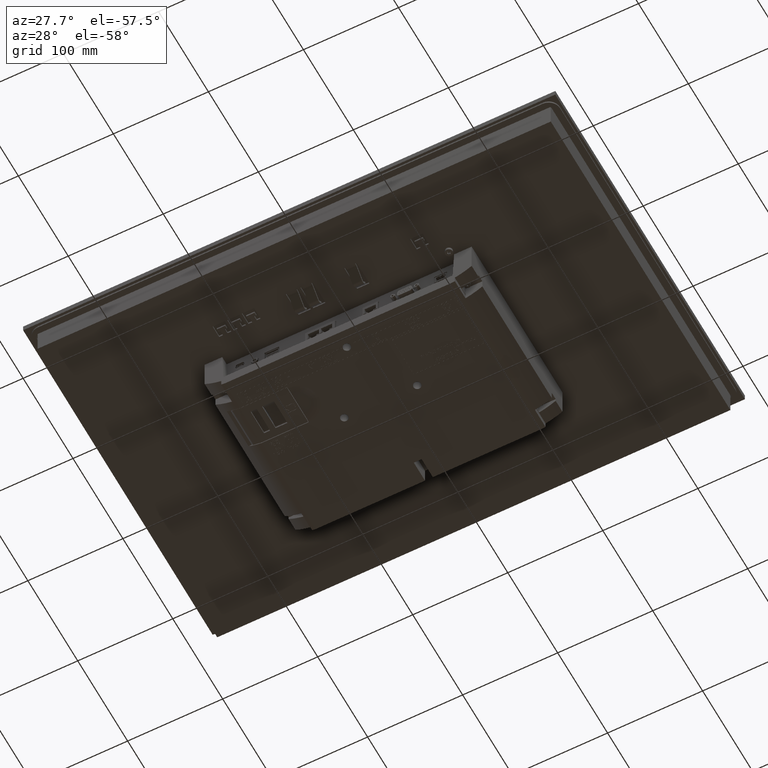
[diagram: clean part render]
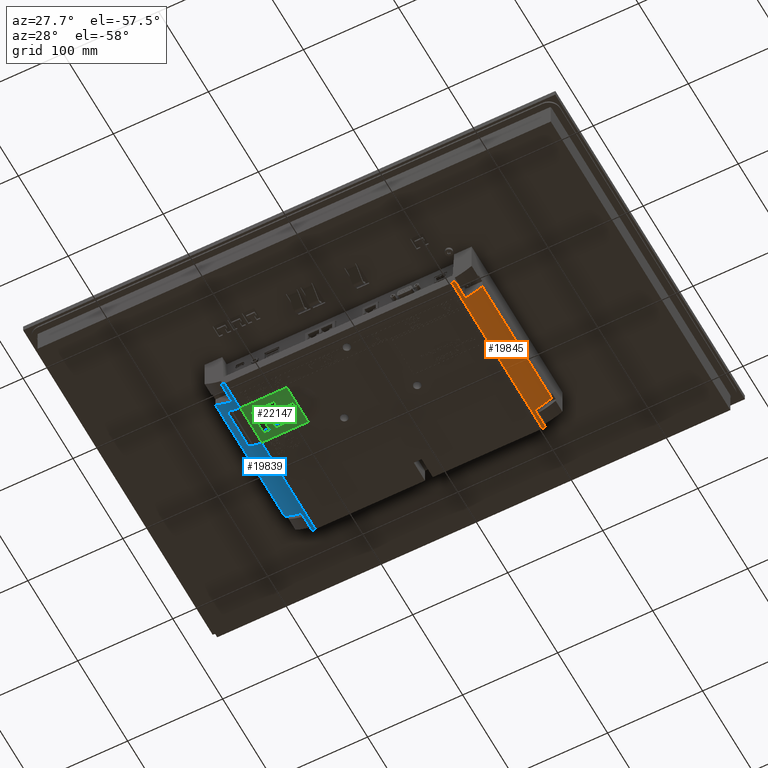
[diagram: same view with three faces highlighted in distinct colors, each labeled with its STEP entity id]
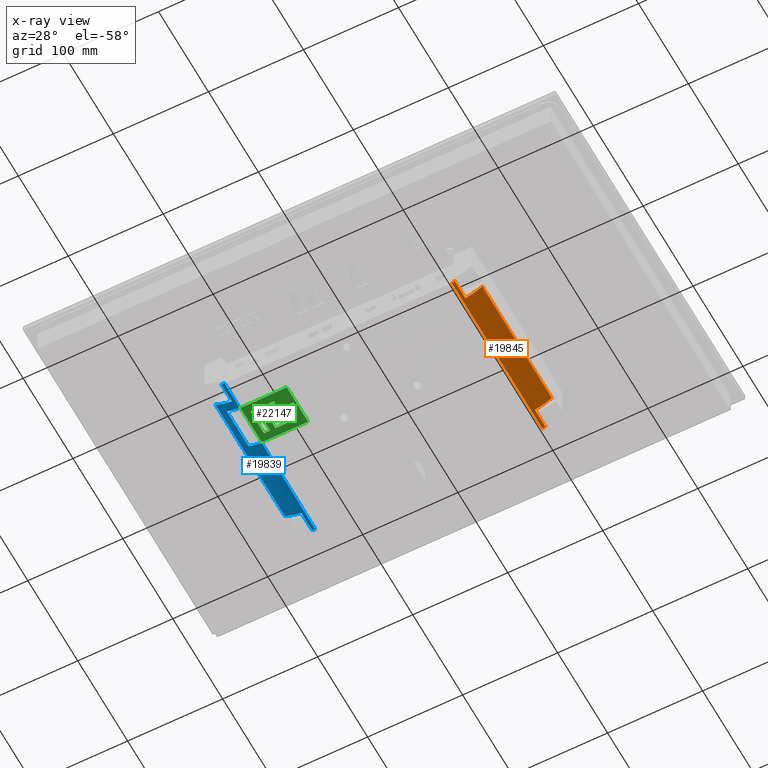
[diagram: x-ray of the same camera — body ghosted, the three highlighted faces saturated]
A machine part, auxiliary view with three faces highlighted in distinct colors.
The next image is the same camera in x-ray (body ghosted, the three faces saturated) — at least one of them is partly hidden behind the body in this view.
Their STEP definitions:

[orange] entity #19845 — the highlighted cylindrical surface (partial cylindrical patch) has radius 60.0001 mm, axis along (0, -1, 0).
#4562=LINE('',#67988,#9908);
#4592=LINE('',#68051,#9938);
#4594=LINE('',#68055,#9940);
#4595=LINE('',#68060,#9941);
#9908=VECTOR('',#56098,1.);
#9938=VECTOR('',#56140,1.);
#9940=VECTOR('',#56144,1.);
#9941=VECTOR('',#56149,1.);
#15005=FACE_OUTER_BOUND('',#23554,.T.);
#19845=ADVANCED_FACE('',(#15005),#22302,.T.);
#22302=CYLINDRICAL_SURFACE('',#51548,60.00007089151);
#23554=EDGE_LOOP('',(#28383,#28384,#28385,#28386,#28387,#28388,#28389,#28390));
#28383=ORIENTED_EDGE('',*,*,#44980,.F.);
#28384=ORIENTED_EDGE('',*,*,#44981,.F.);
#28385=ORIENTED_EDGE('',*,*,#44978,.T.);
#28386=ORIENTED_EDGE('',*,*,#44982,.F.);
#28387=ORIENTED_EDGE('',*,*,#44983,.F.);
#28388=ORIENTED_EDGE('',*,*,#44984,.T.);
#28389=ORIENTED_EDGE('',*,*,#44945,.F.);
#28390=ORIENTED_EDGE('',*,*,#44958,.F.);
#40159=VERTEX_POINT('',#67987);
#40160=VERTEX_POINT('',#67989);
#40169=VERTEX_POINT('',#68011);
#40186=VERTEX_POINT('',#68050);
#40187=VERTEX_POINT('',#68052);
#40188=VERTEX_POINT('',#68056);
#40189=VERTEX_POINT('',#68059);
#40190=VERTEX_POINT('',#68061);
#44945=EDGE_CURVE('',#40159,#40160,#4562,.T.);
#44958=EDGE_CURVE('',#40169,#40159,#50655,.T.);
#44978=EDGE_CURVE('',#40187,#40186,#4592,.T.);
#44980=EDGE_CURVE('',#40188,#40169,#4594,.T.);
#44981=EDGE_CURVE('',#40187,#40188,#50656,.T.);
#44982=EDGE_CURVE('',#40189,#40186,#50657,.T.);
#44983=EDGE_CURVE('',#40190,#40189,#4595,.T.);
#44984=EDGE_CURVE('',#40190,#40160,#50658,.T.);
#50655=CIRCLE('',#51541,60.00007089151);
#50656=CIRCLE('',#51545,60.00007089151);
#50657=CIRCLE('',#51546,60.00007089151);
#50658=CIRCLE('',#51547,60.00007089151);
#51541=AXIS2_PLACEMENT_3D('',#68012,#56115,#56116);
#51545=AXIS2_PLACEMENT_3D('',#68057,#56145,#56146);
#51546=AXIS2_PLACEMENT_3D('',#68058,#56147,#56148);
#51547=AXIS2_PLACEMENT_3D('',#68062,#56150,#56151);
#51548=AXIS2_PLACEMENT_3D('',#68063,#56152,#56153);
#56098=DIRECTION('',(0.,1.,0.));
#56115=DIRECTION('',(0.,-1.,0.));
#56116=DIRECTION('',(0.,0.,1.));
#56140=DIRECTION('',(0.,1.,0.));
#56144=DIRECTION('',(0.,-1.,0.));
#56145=DIRECTION('',(0.,-1.,0.));
#56146=DIRECTION('',(0.,0.,-1.));
#56147=DIRECTION('',(0.,1.,0.));
#56148=DIRECTION('',(0.,0.,1.));
#56149=DIRECTION('',(0.,-1.,0.));
#56150=DIRECTION('',(0.,-1.,0.));
#56151=DIRECTION('',(-1.,0.,1.73472142635978E-016));
#56152=DIRECTION('',(0.,1.,0.));
#56153=DIRECTION('',(0.,0.,1.));
#67987=CARTESIAN_POINT('',(-119.500005295459,-125.58730192373,-75.5999999998899));
#67988=CARTESIAN_POINT('',(-119.500005295459,-143.61269807627,-75.5999999998899));
#67989=CARTESIAN_POINT('',(-119.500005295459,56.38730192373,-75.6));
#68011=CARTESIAN_POINT('',(-122.72475017102,-125.58730192373,-74.9113688106157));
#68012=CARTESIAN_POINT('',(-108.586854133333,-125.58730192373,-16.6007488292283));
#68050=CARTESIAN_POINT('',(-140.4873019237,35.00470192373,-67.4177729231314));
#68051=CARTESIAN_POINT('',(-140.4873019237,-143.61269807627,-67.4177729231314));
#68052=CARTESIAN_POINT('',(-140.4873019237,-104.20470192373,-67.4177729231314));
#68055=CARTESIAN_POINT('',(-122.72475017102,-143.61269807627,-74.9113688106157));
#68056=CARTESIAN_POINT('',(-122.72475017102,-104.20470192373,-74.9113688106157));
#68057=CARTESIAN_POINT('',(-108.586854133333,-104.20470192373,-16.6007488292283));
#68058=CARTESIAN_POINT('',(-108.586854133333,35.00470192373,-16.6007488292283));
#68059=CARTESIAN_POINT('',(-122.72475017102,35.00470192373,-74.9113688106157));
#68060=CARTESIAN_POINT('',(-122.72475017102,-143.61269807627,-74.9113688106157));
#68061=CARTESIAN_POINT('',(-122.72475017102,56.38730192373,-74.9113688106157));
#68062=CARTESIAN_POINT('',(-108.586854133333,56.38730192373,-16.6007488292283));
#68063=CARTESIAN_POINT('',(-108.586854133333,-143.61269807627,-16.6007488292283));

[blue] entity #19839 — the highlighted cylindrical surface (partial cylindrical patch) has radius 60 mm, axis along (0, -1, 0).
#4537=LINE('',#67917,#9883);
#4538=LINE('',#67921,#9884);
#4539=LINE('',#67925,#9885);
#4540=LINE('',#67929,#9886);
#4541=LINE('',#67933,#9887);
#4542=LINE('',#67937,#9888);
#9883=VECTOR('',#56047,1.);
#9884=VECTOR('',#56050,1.);
#9885=VECTOR('',#56053,1.);
#9886=VECTOR('',#56056,1.);
#9887=VECTOR('',#56059,1.);
#9888=VECTOR('',#56062,1.);
#15001=FACE_OUTER_BOUND('',#23544,.T.);
#19839=ADVANCED_FACE('',(#15001),#22301,.T.);
#22301=CYLINDRICAL_SURFACE('',#51531,59.9999932181805);
#23544=EDGE_LOOP('',(#28301,#28302,#28303,#28304,#28305,#28306,#28307,#28308,
#28309,#28310,#28311,#28312,#28313));
#28301=ORIENTED_EDGE('',*,*,#44908,.F.);
#28302=ORIENTED_EDGE('',*,*,#44909,.F.);
#28303=ORIENTED_EDGE('',*,*,#44910,.F.);
#28304=ORIENTED_EDGE('',*,*,#44911,.T.);
#28305=ORIENTED_EDGE('',*,*,#44912,.T.);
#28306=ORIENTED_EDGE('',*,*,#44913,.F.);
#28307=ORIENTED_EDGE('',*,*,#44914,.F.);
#28308=ORIENTED_EDGE('',*,*,#44915,.F.);
#28309=ORIENTED_EDGE('',*,*,#44916,.F.);
#28310=ORIENTED_EDGE('',*,*,#44917,.F.);
#28311=ORIENTED_EDGE('',*,*,#44918,.F.);
#28312=ORIENTED_EDGE('',*,*,#44919,.T.);
#28313=ORIENTED_EDGE('',*,*,#44920,.F.);
#40125=VERTEX_POINT('',#67915);
#40126=VERTEX_POINT('',#67916);
#40127=VERTEX_POINT('',#67918);
#40128=VERTEX_POINT('',#67920);
#40129=VERTEX_POINT('',#67922);
#40130=VERTEX_POINT('',#67924);
#40131=VERTEX_POINT('',#67926);
#40132=VERTEX_POINT('',#67928);
#40133=VERTEX_POINT('',#67930);
#40134=VERTEX_POINT('',#67932);
#40135=VERTEX_POINT('',#67934);
#40136=VERTEX_POINT('',#67936);
#40137=VERTEX_POINT('',#67938);
#44908=EDGE_CURVE('',#40125,#40126,#50641,.T.);
#44909=EDGE_CURVE('',#40127,#40125,#4537,.T.);
#44910=EDGE_CURVE('',#40128,#40127,#50642,.T.);
#44911=EDGE_CURVE('',#40128,#40129,#4538,.T.);
#44912=EDGE_CURVE('',#40129,#40130,#50643,.T.);
#44913=EDGE_CURVE('',#40131,#40130,#4539,.T.);
#44914=EDGE_CURVE('',#40132,#40131,#50644,.T.);
#44915=EDGE_CURVE('',#40133,#40132,#4540,.T.);
#44916=EDGE_CURVE('',#40134,#40133,#50645,.T.);
#44917=EDGE_CURVE('',#40135,#40134,#4541,.T.);
#44918=EDGE_CURVE('',#40136,#40135,#50646,.T.);
#44919=EDGE_CURVE('',#40136,#40137,#4542,.T.);
#44920=EDGE_CURVE('',#40126,#40137,#50647,.T.);
#50641=CIRCLE('',#51524,59.9999932181805);
#50642=CIRCLE('',#51525,59.9999932181805);
#50643=CIRCLE('',#51526,59.9999932181805);
#50644=CIRCLE('',#51527,59.9999932181805);
#50645=CIRCLE('',#51528,59.9999932181805);
#50646=CIRCLE('',#51529,59.9999932181805);
#50647=CIRCLE('',#51530,59.9999932181805);
#51524=AXIS2_PLACEMENT_3D('',#67914,#56045,#56046);
#51525=AXIS2_PLACEMENT_3D('',#67919,#56048,#56049);
#51526=AXIS2_PLACEMENT_3D('',#67923,#56051,#56052);
#51527=AXIS2_PLACEMENT_3D('',#67927,#56054,#56055);
#51528=AXIS2_PLACEMENT_3D('',#67931,#56057,#56058);
#51529=AXIS2_PLACEMENT_3D('',#67935,#56060,#56061);
#51530=AXIS2_PLACEMENT_3D('',#67939,#56063,#56064);
#51531=AXIS2_PLACEMENT_3D('',#67940,#56065,#56066);
#56045=DIRECTION('',(7.50595661958117E-010,1.,7.76097724297701E-035));
#56046=DIRECTION('',(-1.,7.50595677464654E-010,0.));
#56047=DIRECTION('',(0.,-1.,0.));
#56048=DIRECTION('',(-7.50595661958117E-010,-1.,0.));
#56049=DIRECTION('',(1.,-7.50595677464654E-010,0.));
#56050=DIRECTION('',(0.,1.,0.));
#56051=DIRECTION('',(0.,-1.,0.));
#56052=DIRECTION('',(-1.,0.,1.73472367205319E-016));
#56053=DIRECTION('',(0.,1.,0.));
#56054=DIRECTION('',(0.,1.,0.));
#56055=DIRECTION('',(0.,0.,1.));
#56056=DIRECTION('',(0.,1.,0.));
#56057=DIRECTION('',(0.,-1.,0.));
#56058=DIRECTION('',(0.,0.,-1.));
#56059=DIRECTION('',(0.,1.,0.));
#56060=DIRECTION('',(0.,-1.,0.));
#56061=DIRECTION('',(0.,0.,1.));
#56062=DIRECTION('',(0.,1.,0.));
#56063=DIRECTION('',(6.38446580468553E-011,1.,0.));
#56064=DIRECTION('',(-1.,6.38446543780007E-011,0.));
#56065=DIRECTION('',(0.,1.,0.));
#56066=DIRECTION('',(0.,0.,1.));
#67914=CARTESIAN_POINT('',(108.586892071966,-17.8671099936479,-16.6008166148601));
#67915=CARTESIAN_POINT('',(133.244518449686,-17.8671100121557,-71.2999998592055));
#67916=CARTESIAN_POINT('',(128.213450344877,-17.8671100083794,-73.2999999814317));
#67917=CARTESIAN_POINT('',(133.244518449686,-143.61269807627,-71.2999998592056));
#67918=CARTESIAN_POINT('',(133.244518449686,25.6671099878443,-71.2999998592055));
#67919=CARTESIAN_POINT('',(108.586892071966,25.6671100063522,-16.6008166148601));
#67920=CARTESIAN_POINT('',(119.499982654763,25.6671099981608,-75.6));
#67921=CARTESIAN_POINT('',(119.499982654763,-143.61269807627,-75.6));
#67922=CARTESIAN_POINT('',(119.499982654763,56.38730192373,-75.6));
#67923=CARTESIAN_POINT('',(108.586892071966,56.38730192373,-16.6008166148601));
#67924=CARTESIAN_POINT('',(122.9744995459,56.38730192373,-74.8502452589052));
#67925=CARTESIAN_POINT('',(122.9744995459,-143.61269807627,-74.8502452589052));
#67926=CARTESIAN_POINT('',(122.9744995459,35.00470192373,-74.8502452589052));
#67927=CARTESIAN_POINT('',(108.586892071966,35.00470192373,-16.6008166148601));
#67928=CARTESIAN_POINT('',(140.487301923511,35.00470192373,-67.4177728153761));
#67929=CARTESIAN_POINT('',(140.487301923511,-143.61269807627,-67.4177728153761));
#67930=CARTESIAN_POINT('',(140.4873019237,-104.20470192373,-67.4177728152573));
#67931=CARTESIAN_POINT('',(108.586892071966,-104.20470192373,-16.6008166148601));
#67932=CARTESIAN_POINT('',(122.9744995459,-104.20470192373,-74.8502452589052));
#67933=CARTESIAN_POINT('',(122.9744995459,-143.61269807627,-74.8502452589052));
#67934=CARTESIAN_POINT('',(122.9744995459,-125.58730192373,-74.8502452589052));
#67935=CARTESIAN_POINT('',(108.586892071966,-125.58730192373,-16.6008166148601));
#67936=CARTESIAN_POINT('',(119.499982654763,-125.58730192373,-75.6));
#67937=CARTESIAN_POINT('',(119.499982654763,-143.61269807627,-75.6));
#67938=CARTESIAN_POINT('',(119.499982654763,-17.8671099983878,-75.6));
#67939=CARTESIAN_POINT('',(108.586892071966,-17.8671099976911,-16.6008166148601));
#67940=CARTESIAN_POINT('',(108.586892071966,-143.61269807627,-16.6008166148601));

[green] entity #22147 — the highlighted planar face has unit normal (-0, 0, 1).
#8944=LINE('',#93883,#14529);
#8945=LINE('',#93886,#14530);
#8946=LINE('',#93888,#14531);
#8947=LINE('',#93890,#14532);
#8948=LINE('',#93891,#14533);
#8949=LINE('',#93894,#14534);
#8950=LINE('',#93896,#14535);
#8951=LINE('',#93898,#14536);
#8952=LINE('',#93899,#14537);
#8953=LINE('',#93902,#14538);
#8954=LINE('',#93904,#14539);
#8955=LINE('',#93906,#14540);
#8956=LINE('',#93907,#14541);
#8957=LINE('',#93910,#14542);
#8958=LINE('',#93912,#14543);
#8959=LINE('',#93914,#14544);
#8960=LINE('',#93916,#14545);
#14529=VECTOR('',#65239,1.);
#14530=VECTOR('',#65240,1.);
#14531=VECTOR('',#65241,1.);
#14532=VECTOR('',#65242,1.);
#14533=VECTOR('',#65243,1.);
#14534=VECTOR('',#65244,1.);
#14535=VECTOR('',#65245,1.);
#14536=VECTOR('',#65246,1.);
#14537=VECTOR('',#65247,1.);
#14538=VECTOR('',#65248,1.);
#14539=VECTOR('',#65249,1.);
#14540=VECTOR('',#65250,1.);
#14541=VECTOR('',#65251,1.);
#14542=VECTOR('',#65252,1.);
#14543=VECTOR('',#65253,1.);
#14544=VECTOR('',#65254,1.);
#14545=VECTOR('',#65255,1.);
#19379=PLANE('',#53798);
#22147=ADVANCED_FACE('',(#23022,#23023,#23024,#23025),#19379,.F.);
#23022=FACE_BOUND('',#26107,.T.);
#23023=FACE_BOUND('',#26108,.T.);
#23024=FACE_BOUND('',#26109,.T.);
#23025=FACE_BOUND('',#26110,.T.);
#26107=EDGE_LOOP('',(#39158,#39159,#39160,#39161));
#26108=EDGE_LOOP('',(#39162,#39163,#39164,#39165));
#26109=EDGE_LOOP('',(#39166,#39167,#39168,#39169));
#26110=EDGE_LOOP('',(#39170,#39171,#39172,#39173,#39174));
#39158=ORIENTED_EDGE('',*,*,#50298,.F.);
#39159=ORIENTED_EDGE('',*,*,#50299,.F.);
#39160=ORIENTED_EDGE('',*,*,#50300,.F.);
#39161=ORIENTED_EDGE('',*,*,#50301,.F.);
#39162=ORIENTED_EDGE('',*,*,#50302,.T.);
#39163=ORIENTED_EDGE('',*,*,#50303,.F.);
#39164=ORIENTED_EDGE('',*,*,#50304,.F.);
#39165=ORIENTED_EDGE('',*,*,#50305,.T.);
#39166=ORIENTED_EDGE('',*,*,#50306,.T.);
#39167=ORIENTED_EDGE('',*,*,#50307,.T.);
#39168=ORIENTED_EDGE('',*,*,#50308,.T.);
#39169=ORIENTED_EDGE('',*,*,#50309,.T.);
#39170=ORIENTED_EDGE('',*,*,#50310,.T.);
#39171=ORIENTED_EDGE('',*,*,#50311,.T.);
#39172=ORIENTED_EDGE('',*,*,#50312,.T.);
#39173=ORIENTED_EDGE('',*,*,#50313,.T.);
#39174=ORIENTED_EDGE('',*,*,#50314,.T.);
#43732=VERTEX_POINT('',#93884);
#43733=VERTEX_POINT('',#93885);
#43734=VERTEX_POINT('',#93887);
#43735=VERTEX_POINT('',#93889);
#43736=VERTEX_POINT('',#93892);
#43737=VERTEX_POINT('',#93893);
#43738=VERTEX_POINT('',#93895);
#43739=VERTEX_POINT('',#93897);
#43740=VERTEX_POINT('',#93900);
#43741=VERTEX_POINT('',#93901);
#43742=VERTEX_POINT('',#93903);
#43743=VERTEX_POINT('',#93905);
#43744=VERTEX_POINT('',#93908);
#43745=VERTEX_POINT('',#93909);
#43746=VERTEX_POINT('',#93911);
#43747=VERTEX_POINT('',#93913);
#43748=VERTEX_POINT('',#93915);
#50298=EDGE_CURVE('',#43732,#43733,#8944,.T.);
#50299=EDGE_CURVE('',#43734,#43732,#8945,.T.);
#50300=EDGE_CURVE('',#43735,#43734,#8946,.T.);
#50301=EDGE_CURVE('',#43733,#43735,#8947,.T.);
#50302=EDGE_CURVE('',#43736,#43737,#8948,.T.);
#50303=EDGE_CURVE('',#43738,#43737,#8949,.T.);
#50304=EDGE_CURVE('',#43739,#43738,#8950,.T.);
#50305=EDGE_CURVE('',#43739,#43736,#8951,.T.);
#50306=EDGE_CURVE('',#43740,#43741,#8952,.T.);
#50307=EDGE_CURVE('',#43741,#43742,#8953,.T.);
#50308=EDGE_CURVE('',#43742,#43743,#8954,.T.);
#50309=EDGE_CURVE('',#43743,#43740,#8955,.T.);
#50310=EDGE_CURVE('',#43744,#43745,#8956,.T.);
#50311=EDGE_CURVE('',#43745,#43746,#8957,.T.);
#50312=EDGE_CURVE('',#43746,#43747,#8958,.T.);
#50313=EDGE_CURVE('',#43747,#43748,#8959,.T.);
#50314=EDGE_CURVE('',#43748,#43744,#8960,.T.);
#53798=AXIS2_PLACEMENT_3D('',#93917,#65256,#65257);
#65239=DIRECTION('',(-2.91445848928636E-011,1.,-3.65212902658751E-020));
#65240=DIRECTION('',(-1.,-1.7851496621565E-010,-1.25310723759245E-009));
#65241=DIRECTION('',(2.91451016133376E-011,-1.,3.65219377720409E-020));
#65242=DIRECTION('',(1.,1.78514966148795E-010,1.25310723759245E-009));
#65243=DIRECTION('',(-1.,0.,-1.25310723759245E-009));
#65244=DIRECTION('',(0.,-1.,0.));
#65245=DIRECTION('',(-1.,0.,-1.25310723759245E-009));
#65246=DIRECTION('',(0.,-1.,0.));
#65247=DIRECTION('',(-1.,-7.140737732797E-011,-1.25310723759245E-009));
#65248=DIRECTION('',(2.91451016133376E-011,-1.,3.65219377720409E-020));
#65249=DIRECTION('',(1.,7.14044293848278E-011,1.25310723759245E-009));
#65250=DIRECTION('',(-2.91449724332191E-011,1.,-3.65217758954994E-020));
#65251=DIRECTION('',(0.,-1.,0.));
#65252=DIRECTION('',(0.707106781186548,-0.707106781186547,8.8608062765984E-010));
#65253=DIRECTION('',(1.,0.,1.25310725232033E-009));
#65254=DIRECTION('',(0.,1.,0.));
#65255=DIRECTION('',(-1.,0.,-1.25310724943691E-009));
#65256=DIRECTION('',(-1.25310723759245E-009,0.,1.));
#65257=DIRECTION('',(1.,0.,1.25310723755011E-009));
#93883=CARTESIAN_POINT('',(-42.3121376768033,42.9019999987664,-1.89999998678827));
#93884=CARTESIAN_POINT('',(-42.3121376757871,8.0375645485555,-1.89999998280499));
#93885=CARTESIAN_POINT('',(-42.3121376765699,34.8950019971096,-1.89999998280499));
#93886=CARTESIAN_POINT('',(0.0165808718131422,8.03756455611181,-1.89999993374584));
#93887=CARTESIAN_POINT('',(-35.9547002272291,8.0375645496904,-1.89999997882172));
#93888=CARTESIAN_POINT('',(-35.9547002282452,42.9019999989516,-1.89999997882172));
#93889=CARTESIAN_POINT('',(-35.954700225631,34.8950019982445,-1.89999997882172));
#93890=CARTESIAN_POINT('',(0.0165808670186877,34.8950020046659,-1.89999993374584));
#93891=CARTESIAN_POINT('',(0.0165808655893187,0.,-1.89999993374584));
#93892=CARTESIAN_POINT('',(0.0165808655893211,0.,-1.89999993374584));
#93893=CARTESIAN_POINT('',(-48.81855296411,0.,-1.8999999949415));
#93894=CARTESIAN_POINT('',(-48.81855296411,42.902,-1.8999999949415));
#93895=CARTESIAN_POINT('',(-48.81855296411,42.902,-1.8999999949415));
#93896=CARTESIAN_POINT('',(0.0165808655893187,42.902,-1.89999993374584));
#93897=CARTESIAN_POINT('',(0.0165808655893211,42.902,-1.89999993374584));
#93898=CARTESIAN_POINT('',(0.0165808655893211,42.902,-1.89999993374584));
#93899=CARTESIAN_POINT('',(0.0165808661610774,34.8950019993908,-1.89999993374584));
#93900=CARTESIAN_POINT('',(-17.8047002280159,34.8950019981182,-1.89999996382042));
#93901=CARTESIAN_POINT('',(-30.1621376765738,34.8950019972358,-1.89999997156301));
#93902=CARTESIAN_POINT('',(-30.1621376768072,42.9019999991204,-1.89999997156301));
#93903=CARTESIAN_POINT('',(-30.162137675791,8.03756454868176,-1.89999996382042));
#93904=CARTESIAN_POINT('',(0.0165808680787938,8.03756455083666,-1.89999993374584));
#93905=CARTESIAN_POINT('',(-17.8047002272331,8.03756454956415,-1.89999995607782));
#93906=CARTESIAN_POINT('',(-17.8047002282492,42.9019999994806,-1.89999995607782));
#93907=CARTESIAN_POINT('',(-13.1860598577541,25.4662832734,-1.89999995029017));
#93908=CARTESIAN_POINT('',(-13.18605985813,25.4662832734,-1.89999995029017));
#93909=CARTESIAN_POINT('',(-13.1860598577541,20.266283273391,-1.89999995029017));
#93910=CARTESIAN_POINT('',(-13.1860598577541,20.266283273391,-1.89999995029017));
#93911=CARTESIAN_POINT('',(-10.3860598577631,17.4662832734,-1.89999994678147));
#93912=CARTESIAN_POINT('',(-10.3860598577631,17.4662832734,-1.89999994678147));
#93913=CARTESIAN_POINT('',(-2.18605985775406,17.4662832734,-1.89999993650599));
#93914=CARTESIAN_POINT('',(-2.18605985775406,17.4662832734,-1.89999993650599));
#93915=CARTESIAN_POINT('',(-2.18605985775406,25.4662832734,-1.89999993650599));
#93916=CARTESIAN_POINT('',(-2.18605985775406,25.4662832734,-1.89999993650599));
#93917=CARTESIAN_POINT('',(0.0165808655893187,42.902,-1.89999993374584));